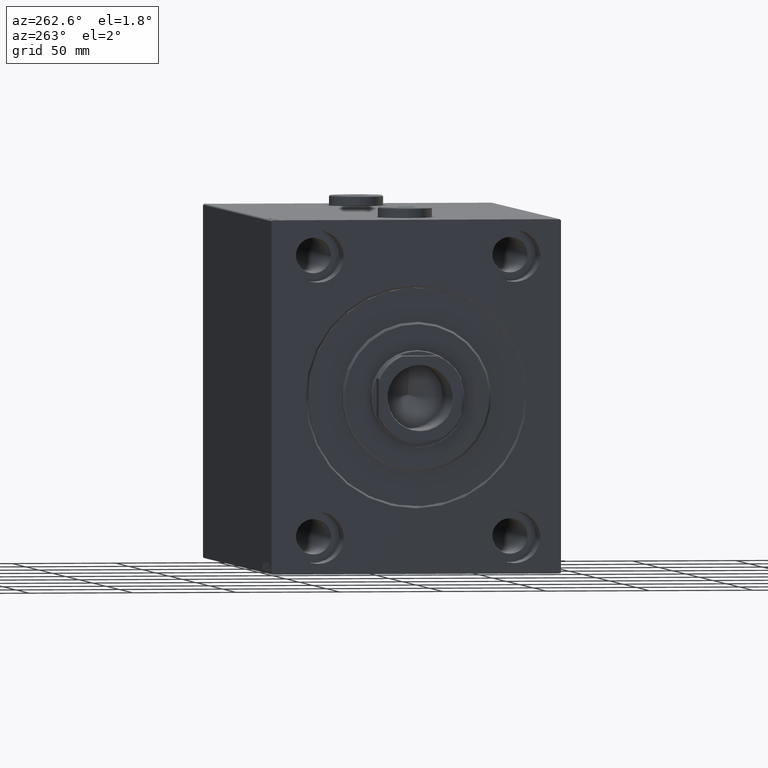
[diagram: clean part render]
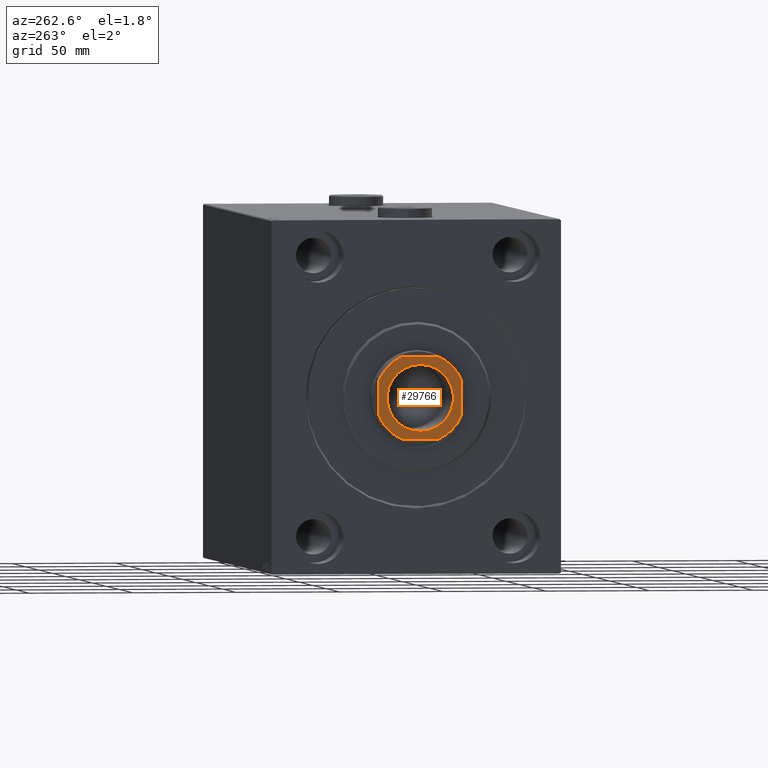
[diagram: same view with one face highlighted and labeled with its STEP entity id]
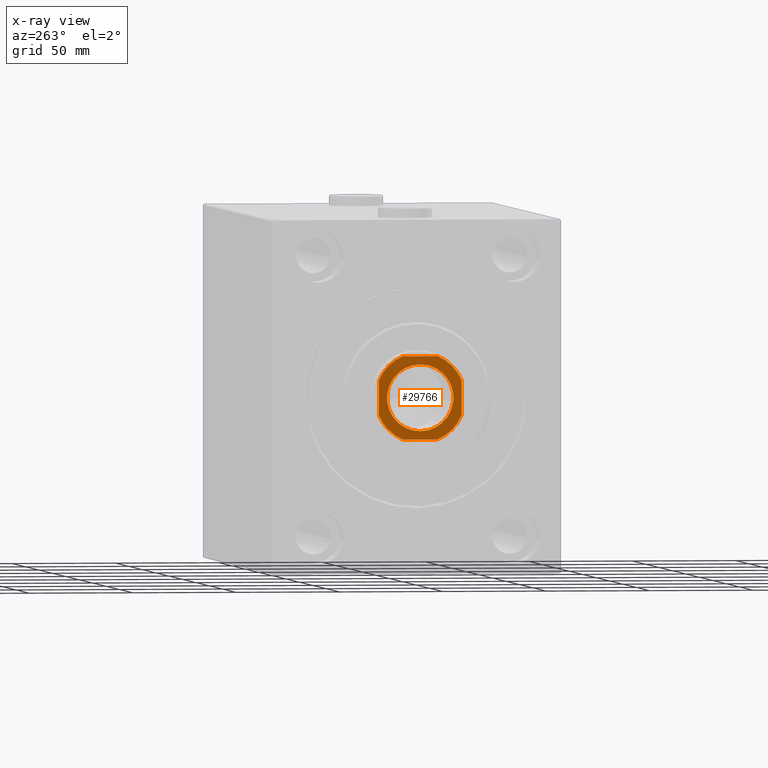
[diagram: x-ray of the same camera — body ghosted, the highlighted face saturated]
A machine part, auxiliary view. The second image highlights one B-rep face of the part: STEP entity #29766.
The next image is the same camera in x-ray: the body ghosted, the highlighted face saturated — about 0% of this face is hidden behind the body in this view.
In plain terms, the highlighted planar face has unit normal (-1, 0, 0).
Its self-contained STEP definition (entity closure, byte-faithful):
#19 = CARTESIAN_POINT ( 'NONE',  ( 0.000000000000000000, 0.000000000000000000, 244.0000000000000284 ) ) ;
#337 = AXIS2_PLACEMENT_3D ( 'NONE', #13300, #6880, #44683 ) ;
#1059 = CIRCLE ( 'NONE', #337, 21.69999999999996021 ) ;
#2306 = AXIS2_PLACEMENT_3D ( 'NONE', #6061, #16842, #34708 ) ;
#3043 = ORIENTED_EDGE ( 'NONE', *, *, #16002, .T. ) ;
#3098 = AXIS2_PLACEMENT_3D ( 'NONE', #13662, #20767, #17541 ) ;
#3912 = CIRCLE ( 'NONE', #22196, 16.05000000000003624 ) ;
#4023 = CARTESIAN_POINT ( 'NONE',  ( -20.00000000000000711, 19.99999999999998934, 244.0000000000000284 ) ) ;
#4238 = EDGE_CURVE ( 'NONE', #9166, #25675, #33962, .T. ) ;
#5130 = CARTESIAN_POINT ( 'NONE',  ( -20.00000000000000000, -8.419619943916694993, 244.0000000000000284 ) ) ;
#6061 = CARTESIAN_POINT ( 'NONE',  ( 0.000000000000000000, 0.000000000000000000, 244.0000000000000284 ) ) ;
#6478 = AXIS2_PLACEMENT_3D ( 'NONE', #19, #14022, #29342 ) ;
#6535 = EDGE_CURVE ( 'NONE', #40321, #25145, #1059, .T. ) ;
#6880 = DIRECTION ( 'NONE',  ( -0.000000000000000000, 0.000000000000000000, 1.000000000000000000 ) ) ;
#7437 = EDGE_LOOP ( 'NONE', ( #11549, #7629, #15181, #24799, #12325, #32250, #21290, #3043 ) ) ;
#7629 = ORIENTED_EDGE ( 'NONE', *, *, #6535, .T. ) ;
#8679 = DIRECTION ( 'NONE',  ( 1.000000000000000000, 0.000000000000000000, 0.000000000000000000 ) ) ;
#9166 = VERTEX_POINT ( 'NONE', #5130 ) ;
#9431 = CARTESIAN_POINT ( 'NONE',  ( 8.419619943916575977, -20.00000000000001066, 244.0000000000000284 ) ) ;
#9880 = CIRCLE ( 'NONE', #42065, 16.05000000000003624 ) ;
#10104 = EDGE_CURVE ( 'NONE', #14121, #40848, #9880, .T. ) ;
#10117 = ORIENTED_EDGE ( 'NONE', *, *, #10104, .T. ) ;
#10654 = VERTEX_POINT ( 'NONE', #41482 ) ;
#11211 = DIRECTION ( 'NONE',  ( 0.000000000000000000, -0.000000000000000000, -1.000000000000000000 ) ) ;
#11549 = ORIENTED_EDGE ( 'NONE', *, *, #13818, .T. ) ;
#12325 = ORIENTED_EDGE ( 'NONE', *, *, #14148, .T. ) ;
#12622 = CIRCLE ( 'NONE', #3098, 21.69999999999999574 ) ;
#13300 = CARTESIAN_POINT ( 'NONE',  ( 0.000000000000000000, 0.000000000000000000, 244.0000000000000284 ) ) ;
#13662 = CARTESIAN_POINT ( 'NONE',  ( 0.000000000000000000, 0.000000000000000000, 244.0000000000000284 ) ) ;
#13704 = LINE ( 'NONE', #21477, #20016 ) ;
#13818 = EDGE_CURVE ( 'NONE', #15553, #40321, #38479, .T. ) ;
#14022 = DIRECTION ( 'NONE',  ( -0.000000000000000000, 0.000000000000000000, 1.000000000000000000 ) ) ;
#14121 = VERTEX_POINT ( 'NONE', #31087 ) ;
#14148 = EDGE_CURVE ( 'NONE', #17840, #9166, #21676, .T. ) ;
#14601 = CARTESIAN_POINT ( 'NONE',  ( 19.99999999999999289, 8.419619943916616833, 244.0000000000000284 ) ) ;
#14971 = CARTESIAN_POINT ( 'NONE',  ( -8.419619943916673677, -20.00000000000001066, 244.0000000000000284 ) ) ;
#15181 = ORIENTED_EDGE ( 'NONE', *, *, #34594, .T. ) ;
#15333 = CARTESIAN_POINT ( 'NONE',  ( 0.000000000000000000, 0.000000000000000000, 244.0000000000000284 ) ) ;
#15553 = VERTEX_POINT ( 'NONE', #35711 ) ;
#16002 = EDGE_CURVE ( 'NONE', #32401, #15553, #17470, .T. ) ;
#16618 = FACE_OUTER_BOUND ( 'NONE', #7437, .T. ) ;
#16842 = DIRECTION ( 'NONE',  ( -0.000000000000000000, 0.000000000000000000, 1.000000000000000000 ) ) ;
#17470 = CIRCLE ( 'NONE', #6478, 21.69999999999996021 ) ;
#17541 = DIRECTION ( 'NONE',  ( 1.000000000000000000, 0.000000000000000000, 0.000000000000000000 ) ) ;
#17685 = VECTOR ( 'NONE', #43654, 1000.000000000000000 ) ;
#17840 = VERTEX_POINT ( 'NONE', #29749 ) ;
#18071 = EDGE_LOOP ( 'NONE', ( #22873, #10117 ) ) ;
#19135 = LINE ( 'NONE', #22801, #17685 ) ;
#20016 = VECTOR ( 'NONE', #38218, 1000.000000000000000 ) ;
#20323 = VECTOR ( 'NONE', #24869, 1000.000000000000000 ) ;
#20767 = DIRECTION ( 'NONE',  ( -0.000000000000000000, 0.000000000000000000, 1.000000000000000000 ) ) ;
#21290 = ORIENTED_EDGE ( 'NONE', *, *, #29673, .T. ) ;
#21477 = CARTESIAN_POINT ( 'NONE',  ( -20.00000000000000711, 19.99999999999998934, 244.0000000000000284 ) ) ;
#21676 = LINE ( 'NONE', #4023, #20323 ) ;
#22196 = AXIS2_PLACEMENT_3D ( 'NONE', #38502, #11211, #25186 ) ;
#22801 = CARTESIAN_POINT ( 'NONE',  ( -19.99999999999999645, -20.00000000000001066, 244.0000000000000284 ) ) ;
#22873 = ORIENTED_EDGE ( 'NONE', *, *, #34210, .T. ) ;
#24262 = CARTESIAN_POINT ( 'NONE',  ( 19.99999999999999289, 19.99999999999999289, 244.0000000000000284 ) ) ;
#24799 = ORIENTED_EDGE ( 'NONE', *, *, #31888, .T. ) ;
#24869 = DIRECTION ( 'NONE',  ( 2.602085213965210642E-16, -1.000000000000000000, 0.000000000000000000 ) ) ;
#25145 = VERTEX_POINT ( 'NONE', #35548 ) ;
#25186 = DIRECTION ( 'NONE',  ( 1.000000000000000000, 0.000000000000000000, 0.000000000000000000 ) ) ;
#25675 = VERTEX_POINT ( 'NONE', #14971 ) ;
#27707 = DIRECTION ( 'NONE',  ( -2.602085213965210149E-16, 1.000000000000000000, -0.000000000000000000 ) ) ;
#29342 = DIRECTION ( 'NONE',  ( 1.000000000000000000, 0.000000000000000000, 0.000000000000000000 ) ) ;
#29673 = EDGE_CURVE ( 'NONE', #25675, #32401, #19135, .T. ) ;
#29749 = CARTESIAN_POINT ( 'NONE',  ( -20.00000000000000355, 8.419619943916682558, 244.0000000000000284 ) ) ;
#29766 = ADVANCED_FACE ( 'NONE', ( #44561, #16618 ), #37919, .T. ) ;
#31087 = CARTESIAN_POINT ( 'NONE',  ( -16.05000000000003624, 1.965558112631506149E-15, 244.0000000000000284 ) ) ;
#31888 = EDGE_CURVE ( 'NONE', #10654, #17840, #12622, .T. ) ;
#32031 = VECTOR ( 'NONE', #27707, 1000.000000000000000 ) ;
#32250 = ORIENTED_EDGE ( 'NONE', *, *, #4238, .T. ) ;
#32401 = VERTEX_POINT ( 'NONE', #9431 ) ;
#33962 = CIRCLE ( 'NONE', #39811, 21.69999999999999574 ) ;
#34210 = EDGE_CURVE ( 'NONE', #40848, #14121, #3912, .T. ) ;
#34594 = EDGE_CURVE ( 'NONE', #25145, #10654, #13704, .T. ) ;
#34708 = DIRECTION ( 'NONE',  ( 1.000000000000000000, 0.000000000000000000, 0.000000000000000000 ) ) ;
#35548 = CARTESIAN_POINT ( 'NONE',  ( 8.419619943916625715, 19.99999999999999289, 244.0000000000000284 ) ) ;
#35711 = CARTESIAN_POINT ( 'NONE',  ( 20.00000000000000000, -8.419619943916611504, 244.0000000000000284 ) ) ;
#37521 = DIRECTION ( 'NONE',  ( 0.000000000000000000, -0.000000000000000000, -1.000000000000000000 ) ) ;
#37752 = CARTESIAN_POINT ( 'NONE',  ( 0.000000000000000000, 0.000000000000000000, 244.0000000000000284 ) ) ;
#37919 = PLANE ( 'NONE',  #2306 ) ;
#38218 = DIRECTION ( 'NONE',  ( -1.000000000000000000, -8.673617379884035472E-17, -0.000000000000000000 ) ) ;
#38479 = LINE ( 'NONE', #24262, #32031 ) ;
#38502 = CARTESIAN_POINT ( 'NONE',  ( 0.000000000000000000, 0.000000000000000000, 244.0000000000000284 ) ) ;
#39811 = AXIS2_PLACEMENT_3D ( 'NONE', #15333, #43738, #8679 ) ;
#40321 = VERTEX_POINT ( 'NONE', #14601 ) ;
#40848 = VERTEX_POINT ( 'NONE', #42840 ) ;
#41482 = CARTESIAN_POINT ( 'NONE',  ( -8.419619943916716309, 19.99999999999999289, 244.0000000000000284 ) ) ;
#42065 = AXIS2_PLACEMENT_3D ( 'NONE', #37752, #37521, #44610 ) ;
#42840 = CARTESIAN_POINT ( 'NONE',  ( 16.05000000000003624, 0.000000000000000000, 244.0000000000000284 ) ) ;
#43654 = DIRECTION ( 'NONE',  ( 1.000000000000000000, 0.000000000000000000, 0.000000000000000000 ) ) ;
#43738 = DIRECTION ( 'NONE',  ( -0.000000000000000000, 0.000000000000000000, 1.000000000000000000 ) ) ;
#44561 = FACE_BOUND ( 'NONE', #18071, .T. ) ;
#44610 = DIRECTION ( 'NONE',  ( 1.000000000000000000, 0.000000000000000000, 0.000000000000000000 ) ) ;
#44683 = DIRECTION ( 'NONE',  ( 1.000000000000000000, 0.000000000000000000, 0.000000000000000000 ) ) ;